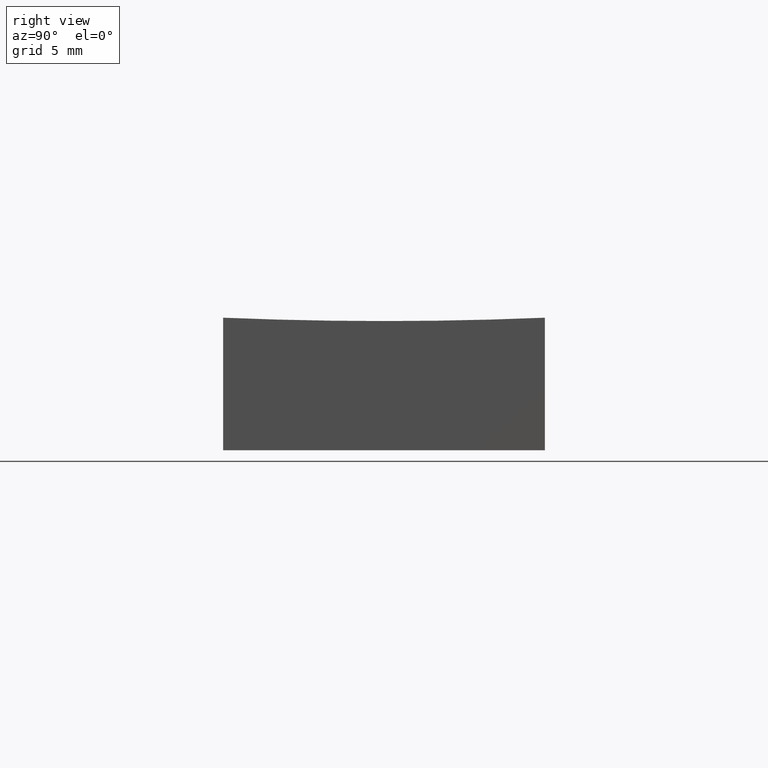
[diagram: clean part render]
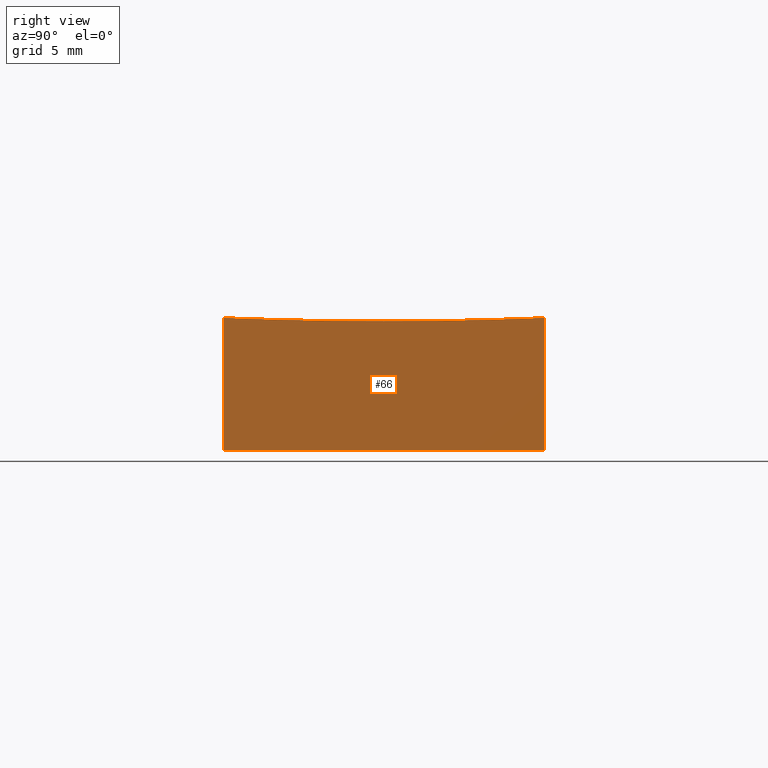
[diagram: same view with one face highlighted and labeled with its STEP entity id]
A machine part, right view. The second image highlights one B-rep face of the part: STEP entity #66.
In plain terms, the highlighted planar face has unit normal (-1, 0, 0).
Its self-contained STEP definition (entity closure, byte-faithful):
#2 = VECTOR ( 'NONE', #145, 1000.000000000000000 ) ;
#5 = CARTESIAN_POINT ( 'NONE',  ( 25.00000000000000000, -6.938893903907228378E-15, 309.0000000000000000 ) ) ;
#12 = VECTOR ( 'NONE', #35, 1000.000000000000000 ) ;
#25 = CARTESIAN_POINT ( 'NONE',  ( 25.00000000000000355, 12.50000000000000000, 10.30492136628702227 ) ) ;
#30 = LINE ( 'NONE', #124, #150 ) ;
#35 = DIRECTION ( 'NONE',  ( 2.775557561562891351E-16, 1.000000000000000000, -0.000000000000000000 ) ) ;
#37 = LINE ( 'NONE', #245, #2 ) ;
#48 = VERTEX_POINT ( 'NONE', #160 ) ;
#51 = DIRECTION ( 'NONE',  ( -2.775557561562891351E-16, -1.000000000000000000, 0.000000000000000000 ) ) ;
#56 = EDGE_CURVE ( 'NONE', #97, #242, #30, .T. ) ;
#66 = ADVANCED_FACE ( 'NONE', ( #83 ), #141, .F. ) ;
#69 = ORIENTED_EDGE ( 'NONE', *, *, #106, .F. ) ;
#71 = VERTEX_POINT ( 'NONE', #25 ) ;
#73 = CARTESIAN_POINT ( 'NONE',  ( 24.99999999999999645, -12.50000000000000000, 10.30492136628696720 ) ) ;
#74 = CARTESIAN_POINT ( 'NONE',  ( 25.00000000000000000, 0.000000000000000000, 10.04348142246502817 ) ) ;
#75 = CARTESIAN_POINT ( 'NONE',  ( 25.00000000000000000, -6.938893903907228378E-15, 309.0000000000000000 ) ) ;
#77 = CIRCLE ( 'NONE', #186, 298.9565185775349505 ) ;
#81 = EDGE_CURVE ( 'NONE', #97, #100, #172, .T. ) ;
#82 = ORIENTED_EDGE ( 'NONE', *, *, #178, .T. ) ;
#83 = FACE_OUTER_BOUND ( 'NONE', #210, .T. ) ;
#97 = VERTEX_POINT ( 'NONE', #73 ) ;
#100 = VERTEX_POINT ( 'NONE', #74 ) ;
#106 = EDGE_CURVE ( 'NONE', #71, #48, #37, .T. ) ;
#120 = DIRECTION ( 'NONE',  ( 1.000000000000000000, -2.775557561562891351E-16, -0.000000000000000000 ) ) ;
#121 = ORIENTED_EDGE ( 'NONE', *, *, #81, .F. ) ;
#123 = AXIS2_PLACEMENT_3D ( 'NONE', #5, #120, #205 ) ;
#124 = CARTESIAN_POINT ( 'NONE',  ( 24.99999999999999645, -12.50000000000000000, 15.00000000000000000 ) ) ;
#126 = CARTESIAN_POINT ( 'NONE',  ( 25.00000000000000355, 12.50000000000000000, 15.00000000000000000 ) ) ;
#129 = AXIS2_PLACEMENT_3D ( 'NONE', #126, #221, #51 ) ;
#131 = LINE ( 'NONE', #204, #12 ) ;
#134 = ORIENTED_EDGE ( 'NONE', *, *, #151, .F. ) ;
#141 = PLANE ( 'NONE',  #129 ) ;
#145 = DIRECTION ( 'NONE',  ( -0.000000000000000000, -0.000000000000000000, -1.000000000000000000 ) ) ;
#150 = VECTOR ( 'NONE', #199, 1000.000000000000000 ) ;
#151 = EDGE_CURVE ( 'NONE', #100, #71, #77, .T. ) ;
#160 = CARTESIAN_POINT ( 'NONE',  ( 25.00000000000000355, 12.50000000000000000, 0.000000000000000000 ) ) ;
#172 = CIRCLE ( 'NONE', #123, 298.9565185775349505 ) ;
#178 = EDGE_CURVE ( 'NONE', #242, #48, #131, .T. ) ;
#182 = DIRECTION ( 'NONE',  ( -2.785245401006078279E-16, -1.000000000000000000, 0.000000000000000000 ) ) ;
#184 = CARTESIAN_POINT ( 'NONE',  ( 24.99999999999999645, -12.50000000000000000, 0.000000000000000000 ) ) ;
#186 = AXIS2_PLACEMENT_3D ( 'NONE', #75, #224, #182 ) ;
#199 = DIRECTION ( 'NONE',  ( -0.000000000000000000, -0.000000000000000000, -1.000000000000000000 ) ) ;
#204 = CARTESIAN_POINT ( 'NONE',  ( 25.00000000000000355, 12.50000000000000000, 0.000000000000000000 ) ) ;
#205 = DIRECTION ( 'NONE',  ( -2.785245401006078279E-16, -1.000000000000000000, 0.000000000000000000 ) ) ;
#210 = EDGE_LOOP ( 'NONE', ( #121, #239, #82, #69, #134 ) ) ;
#221 = DIRECTION ( 'NONE',  ( -1.000000000000000000, 2.775557561562891351E-16, 0.000000000000000000 ) ) ;
#224 = DIRECTION ( 'NONE',  ( 1.000000000000000000, -2.775557561562891351E-16, -0.000000000000000000 ) ) ;
#239 = ORIENTED_EDGE ( 'NONE', *, *, #56, .T. ) ;
#242 = VERTEX_POINT ( 'NONE', #184 ) ;
#245 = CARTESIAN_POINT ( 'NONE',  ( 25.00000000000000355, 12.50000000000000000, 15.00000000000000000 ) ) ;